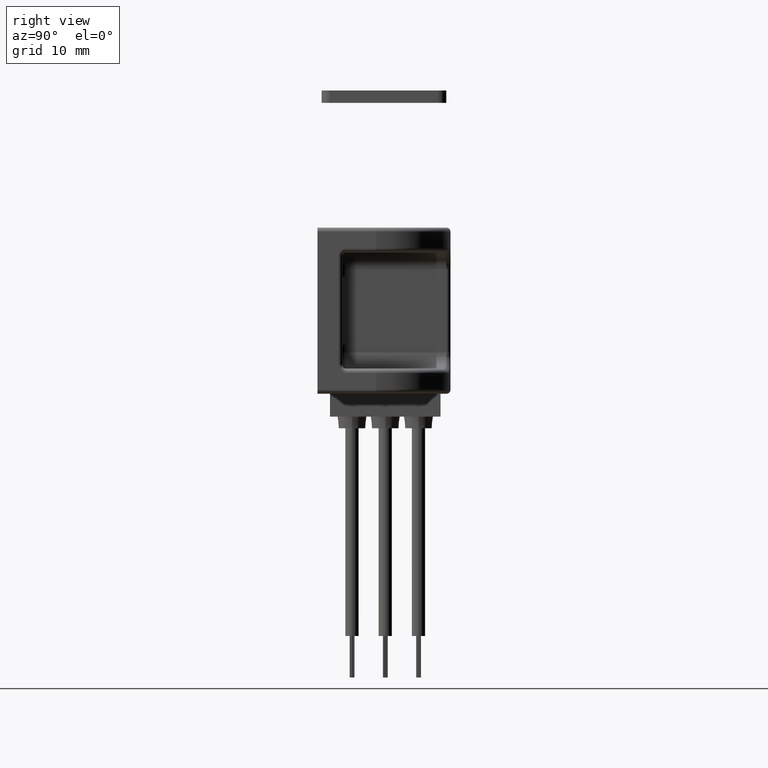
[diagram: clean part render]
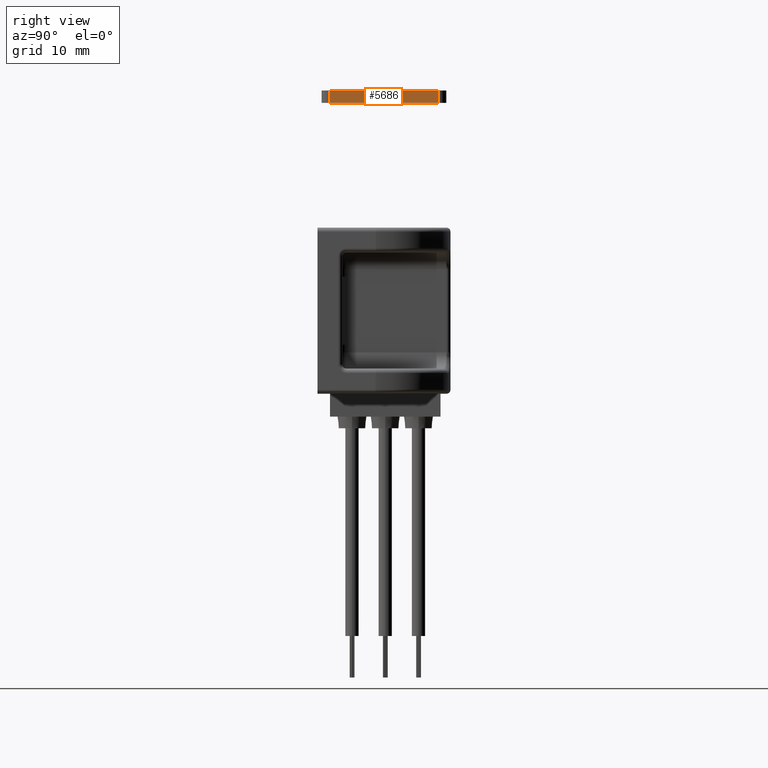
[diagram: same view with one face highlighted and labeled with its STEP entity id]
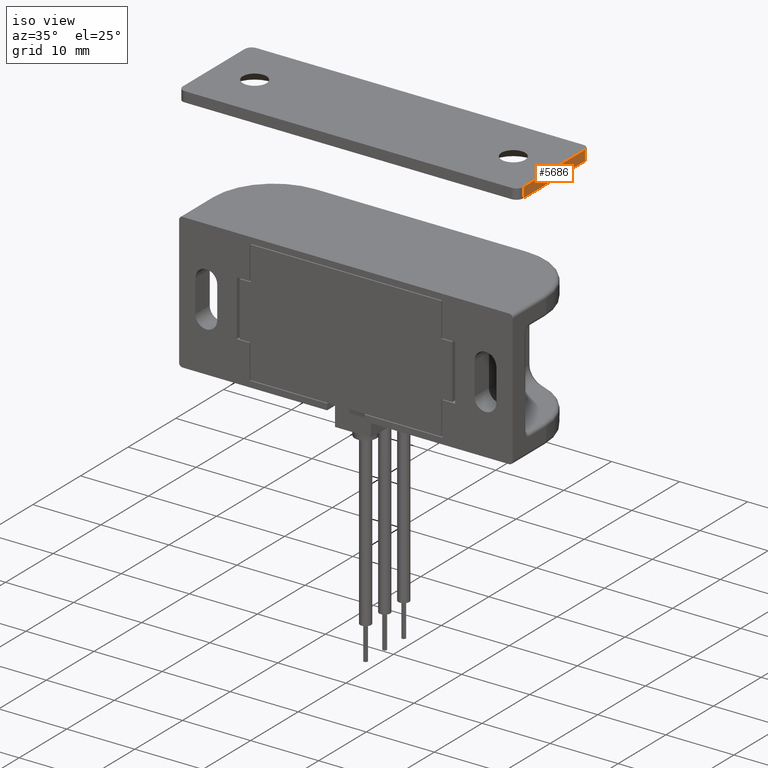
[diagram: same view with one face highlighted and labeled with its STEP entity id]
A machine part, right view. The second image highlights one B-rep face of the part: STEP entity #5686.
A second angle (iso view) of the same face is appended — the face is thin or edge-on in the first view.
In plain terms, the highlighted planar face has unit normal (-1, 0, 0).
Its self-contained STEP definition (entity closure, byte-faithful):
#21 = CARTESIAN_POINT ( 'NONE',  ( 25.00000000000000400, 6.500000000000000000, 1.500000000000000000 ) ) ;
#191 = CARTESIAN_POINT ( 'NONE',  ( 25.00000000000000400, -6.499999999999999100, 1.500000000000000000 ) ) ;
#289 = AXIS2_PLACEMENT_3D ( 'NONE', #692, #4222, #1222 ) ;
#648 = LINE ( 'NONE', #21, #4490 ) ;
#692 = CARTESIAN_POINT ( 'NONE',  ( 25.00000000000000400, -7.499999999999999100, 1.500000000000000000 ) ) ;
#1201 = ORIENTED_EDGE ( 'NONE', *, *, #5220, .F. ) ;
#1214 = DIRECTION ( 'NONE',  ( 0.0000000000000000000, 0.0000000000000000000, -1.000000000000000000 ) ) ;
#1220 = VERTEX_POINT ( 'NONE', #4673 ) ;
#1222 = DIRECTION ( 'NONE',  ( 0.0000000000000000000, 0.0000000000000000000, 1.000000000000000000 ) ) ;
#1242 = VECTOR ( 'NONE', #3439, 1000.000000000000000 ) ;
#1298 = VECTOR ( 'NONE', #1214, 1000.000000000000000 ) ;
#1518 = CARTESIAN_POINT ( 'NONE',  ( 25.00000000000000400, -6.499999999999999100, 0.0000000000000000000 ) ) ;
#1556 = CARTESIAN_POINT ( 'NONE',  ( 25.00000000000000400, 6.500000000000000000, 1.500000000000000000 ) ) ;
#1691 = FACE_OUTER_BOUND ( 'NONE', #4053, .T. ) ;
#2482 = ORIENTED_EDGE ( 'NONE', *, *, #3086, .T. ) ;
#2592 = LINE ( 'NONE', #6447, #1242 ) ;
#2650 = LINE ( 'NONE', #191, #1298 ) ;
#2720 = CARTESIAN_POINT ( 'NONE',  ( 25.00000000000000400, -7.499999999999999100, 1.500000000000000000 ) ) ;
#3043 = DIRECTION ( 'NONE',  ( -0.0000000000000000000, -0.0000000000000000000, 1.000000000000000000 ) ) ;
#3086 = EDGE_CURVE ( 'NONE', #4595, #5811, #2592, .T. ) ;
#3439 = DIRECTION ( 'NONE',  ( 0.0000000000000000000, 1.000000000000000000, 0.0000000000000000000 ) ) ;
#3814 = CARTESIAN_POINT ( 'NONE',  ( 25.00000000000000400, 6.500000000000000000, 0.0000000000000000000 ) ) ;
#4053 = EDGE_LOOP ( 'NONE', ( #1201, #5090, #2482, #6339 ) ) ;
#4222 = DIRECTION ( 'NONE',  ( -1.000000000000000000, 0.0000000000000000000, 0.0000000000000000000 ) ) ;
#4490 = VECTOR ( 'NONE', #3043, 1000.000000000000000 ) ;
#4595 = VERTEX_POINT ( 'NONE', #1518 ) ;
#4673 = CARTESIAN_POINT ( 'NONE',  ( 25.00000000000000400, -6.499999999999999100, 1.500000000000000000 ) ) ;
#4710 = EDGE_CURVE ( 'NONE', #1220, #4595, #2650, .T. ) ;
#5090 = ORIENTED_EDGE ( 'NONE', *, *, #4710, .T. ) ;
#5220 = EDGE_CURVE ( 'NONE', #1220, #6132, #5283, .T. ) ;
#5283 = LINE ( 'NONE', #2720, #6477 ) ;
#5686 = ADVANCED_FACE ( 'NONE', ( #1691 ), #6221, .F. ) ;
#5712 = DIRECTION ( 'NONE',  ( 0.0000000000000000000, 1.000000000000000000, 0.0000000000000000000 ) ) ;
#5811 = VERTEX_POINT ( 'NONE', #3814 ) ;
#6111 = EDGE_CURVE ( 'NONE', #5811, #6132, #648, .T. ) ;
#6132 = VERTEX_POINT ( 'NONE', #1556 ) ;
#6221 = PLANE ( 'NONE',  #289 ) ;
#6339 = ORIENTED_EDGE ( 'NONE', *, *, #6111, .T. ) ;
#6447 = CARTESIAN_POINT ( 'NONE',  ( 25.00000000000000400, -7.499999999999999100, 0.0000000000000000000 ) ) ;
#6477 = VECTOR ( 'NONE', #5712, 1000.000000000000000 ) ;